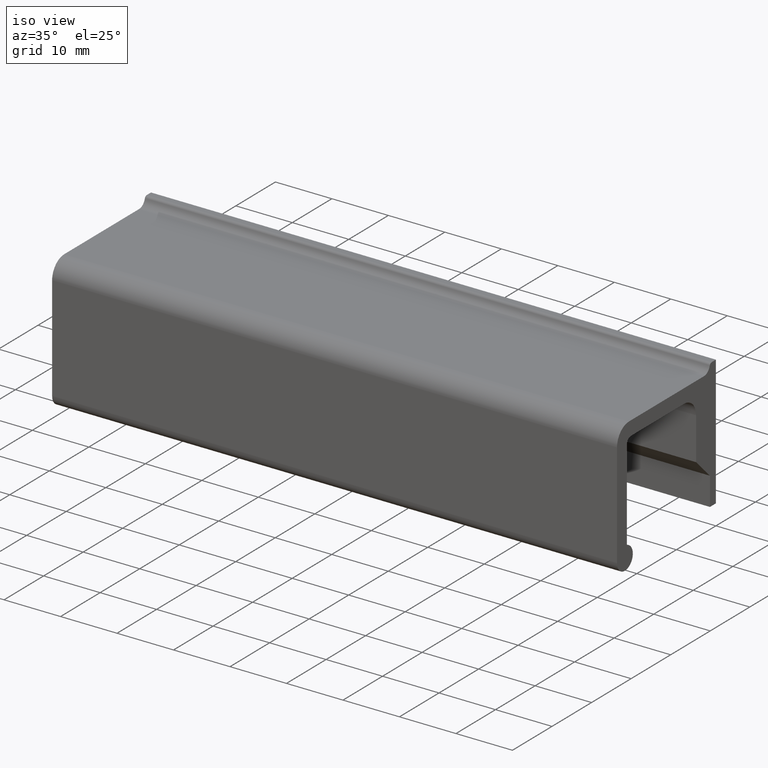
[diagram: clean part render]
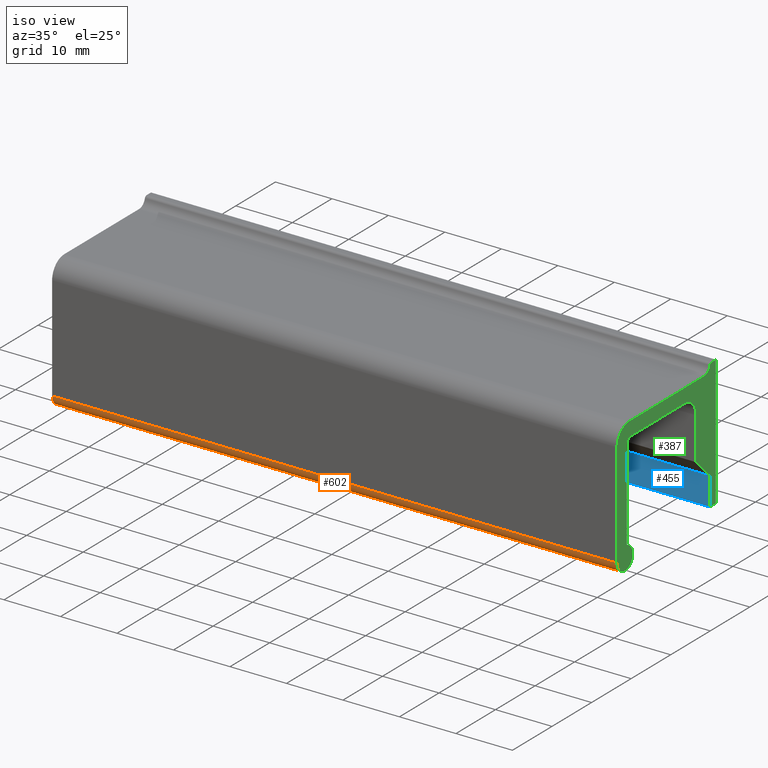
[diagram: same view with three faces highlighted in distinct colors, each labeled with its STEP entity id]
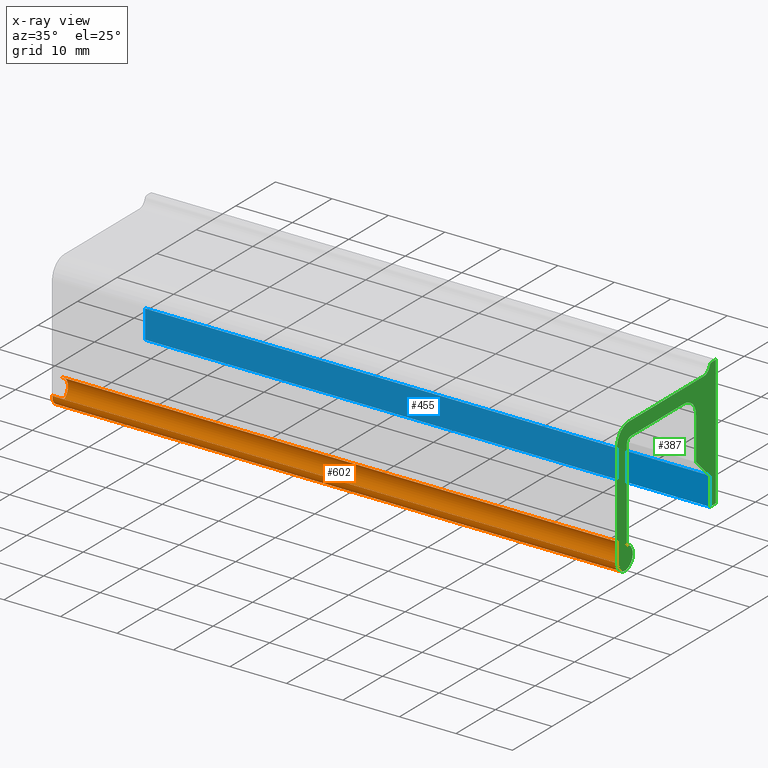
[diagram: x-ray of the same camera — body ghosted, the three highlighted faces saturated]
A machine part, iso view with three faces highlighted in distinct colors.
The next image is the same camera in x-ray (body ghosted, the three faces saturated) — at least one of them is partly hidden behind the body in this view.
Their STEP definitions:

[orange] entity #602 — the highlighted face is a freeform B-spline surface patch.
#145=CARTESIAN_POINT('',(0.0,-22.500000000000000,-21.063508326896400));
#146=VERTEX_POINT('',#145);
#152=CARTESIAN_POINT('',(0.0,-25.0,-23.0));
#153=VERTEX_POINT('',#152);
#154=CARTESIAN_POINT('',(0.0,-25.0,-23.0));
#155=CARTESIAN_POINT('',(0.0,-24.999999999999993,-24.838262194303105));
#156=CARTESIAN_POINT('',(0.0,-23.168254401781031,-24.992910047212700));
#157=CARTESIAN_POINT('',(0.0,-21.336508803562065,-25.147557900122276));
#158=CARTESIAN_POINT('',(0.0,-21.028309543718699,-23.335315887797190));
#159=CARTESIAN_POINT('',(0.0,-20.720110283875314,-21.523073875472090));
#160=CARTESIAN_POINT('',(0.0,-22.500000000000000,-21.063508326896400));
#168=(BOUNDED_CURVE()B_SPLINE_CURVE(2,(#154,#155,#156,#157,#158,#159,#160),.UNSPECIFIED.,.F.,.U.)B_SPLINE_CURVE_WITH_KNOTS((3,2,2,3),(0.0,0.333333333333333,0.666666666666667,1.0),.UNSPECIFIED.)CURVE()GEOMETRIC_REPRESENTATION_ITEM()RATIONAL_B_SPLINE_CURVE((1.0,0.736249686210635,1.0,0.736249686210635,1.0,0.736249686210635,1.0))REPRESENTATION_ITEM(''));
#169=EDGE_CURVE('',#153,#146,#168,.T.);
#275=CARTESIAN_POINT('',(100.0,-25.0,-23.0));
#276=VERTEX_POINT('',#275);
#282=CARTESIAN_POINT('',(100.0,-22.500000000000000,-21.063508326896400));
#283=VERTEX_POINT('',#282);
#284=CARTESIAN_POINT('',(100.0,-25.0,-23.0));
#285=CARTESIAN_POINT('',(99.999999999999986,-24.999999999999993,-24.838262194303105));
#286=CARTESIAN_POINT('',(100.0,-23.168254401781031,-24.992910047212700));
#287=CARTESIAN_POINT('',(99.999999999999986,-21.336508803562065,-25.147557900122276));
#288=CARTESIAN_POINT('',(100.0,-21.028309543718699,-23.335315887797190));
#289=CARTESIAN_POINT('',(99.999999999999986,-20.720110283875314,-21.523073875472090));
#290=CARTESIAN_POINT('',(100.0,-22.499999999999972,-21.063508326896301));
#298=(BOUNDED_CURVE()B_SPLINE_CURVE(2,(#284,#285,#286,#287,#288,#289,#290),.UNSPECIFIED.,.F.,.U.)B_SPLINE_CURVE_WITH_KNOTS((3,2,2,3),(0.0,0.333333333333333,0.666666666666667,1.0),.UNSPECIFIED.)CURVE()GEOMETRIC_REPRESENTATION_ITEM()RATIONAL_B_SPLINE_CURVE((1.0,0.736249686210635,1.0,0.736249686210635,1.0,0.736249686210635,1.0))REPRESENTATION_ITEM(''));
#299=EDGE_CURVE('',#276,#283,#298,.T.);
#562=CARTESIAN_POINT('',(100.0,-22.500000000000000,-21.063508326896400));
#563=CARTESIAN_POINT('',(0.0,-22.500000000000000,-21.063508326896400));
#564=QUASI_UNIFORM_CURVE('',1,(#562,#563),.UNSPECIFIED.,.F.,.U.);
#565=EDGE_CURVE('',#283,#146,#564,.T.);
#570=CARTESIAN_POINT('',(102.500000000000000,-24.999314649951110,-22.947646103384251));
#571=CARTESIAN_POINT('',(-2.562500000000000,-24.999314649951110,-22.947646103384251));
#572=CARTESIAN_POINT('',(102.500000000000010,-25.048708003942743,-24.833902191837279));
#573=CARTESIAN_POINT('',(-2.562500000000000,-25.048708003942743,-24.833902191837279));
#574=CARTESIAN_POINT('',(102.500000000000000,-23.168515130368409,-24.992888017635948));
#575=CARTESIAN_POINT('',(-2.562500000000000,-23.168515130368409,-24.992888017635948));
#576=CARTESIAN_POINT('',(102.500000000000010,-21.288322256794057,-25.151873843434625));
#577=CARTESIAN_POINT('',(-2.562500000000000,-21.288322256794057,-25.151873843434625));
#578=CARTESIAN_POINT('',(102.500000000000000,-21.020281916897069,-23.284106162262109));
#579=CARTESIAN_POINT('',(-2.562500000000000,-21.020281916897069,-23.284106162262109));
#580=CARTESIAN_POINT('',(102.500000000000010,-20.752241577000085,-21.416338481089600));
#581=CARTESIAN_POINT('',(-2.562500000000000,-20.752241577000085,-21.416338481089600));
#582=CARTESIAN_POINT('',(102.500000000000000,-22.601264131165600,-21.040150590758341));
#583=CARTESIAN_POINT('',(-2.562500000000000,-22.601264131165600,-21.040150590758341));
#591=(BOUNDED_SURFACE()B_SPLINE_SURFACE(1,2,((#570,#572,#574,#576,#578,#580,#582),(#571,#573,#575,#577,#579,#581,#583)),.UNSPECIFIED.,.F.,.F.,.U.)B_SPLINE_SURFACE_WITH_KNOTS((2,2),(3,2,2,3),(0.0,105.062500000000000),(0.0,3.178196639581942,6.356393279163884,9.534589918745827),.UNSPECIFIED.)GEOMETRIC_REPRESENTATION_ITEM()RATIONAL_B_SPLINE_SURFACE(((1.0,0.727373641573049,1.0,0.727373641573049,1.0,0.727373641573049,1.0),(1.0,0.727373641573049,1.0,0.727373641573049,1.0,0.727373641573049,1.0)))REPRESENTATION_ITEM('')SURFACE());
#592=ORIENTED_EDGE('',*,*,#169,.T.);
#593=ORIENTED_EDGE('',*,*,#565,.F.);
#594=ORIENTED_EDGE('',*,*,#299,.F.);
#595=CARTESIAN_POINT('',(100.0,-25.0,-23.0));
#596=CARTESIAN_POINT('',(0.0,-25.0,-23.0));
#597=QUASI_UNIFORM_CURVE('',1,(#595,#596),.UNSPECIFIED.,.F.,.U.);
#598=EDGE_CURVE('',#276,#153,#597,.T.);
#599=ORIENTED_EDGE('',*,*,#598,.T.);
#600=EDGE_LOOP('',(#592,#593,#594,#599));
#601=FACE_OUTER_BOUND('',#600,.T.);
#602=ADVANCED_FACE('',(#601),#591,.T.);

[blue] entity #455 — the highlighted face is a freeform B-spline surface patch.
#80=CARTESIAN_POINT('',(0.0,-1.500000000000000,-23.0));
#81=VERTEX_POINT('',#80);
#87=CARTESIAN_POINT('',(0.0,-1.500000000000000,-18.0));
#88=VERTEX_POINT('',#87);
#89=CARTESIAN_POINT('',(0.0,-1.500000000000000,-18.0));
#90=CARTESIAN_POINT('',(0.0,-1.500000000000000,-23.0));
#91=QUASI_UNIFORM_CURVE('',1,(#89,#90),.UNSPECIFIED.,.F.,.U.);
#92=EDGE_CURVE('',#88,#81,#91,.T.);
#352=CARTESIAN_POINT('',(100.0,-1.500000000000000,-18.0));
#353=VERTEX_POINT('',#352);
#359=CARTESIAN_POINT('',(100.0,-1.500000000000000,-23.0));
#360=VERTEX_POINT('',#359);
#361=CARTESIAN_POINT('',(100.0,-1.500000000000000,-18.0));
#362=CARTESIAN_POINT('',(100.0,-1.500000000000000,-23.0));
#363=QUASI_UNIFORM_CURVE('',1,(#361,#362),.UNSPECIFIED.,.F.,.U.);
#364=EDGE_CURVE('',#353,#360,#363,.T.);
#432=CARTESIAN_POINT('',(100.0,-1.500000000000000,-23.0));
#433=CARTESIAN_POINT('',(0.0,-1.500000000000000,-23.0));
#434=QUASI_UNIFORM_CURVE('',1,(#432,#433),.UNSPECIFIED.,.F.,.U.);
#435=EDGE_CURVE('',#360,#81,#434,.T.);
#440=CARTESIAN_POINT('',(-4.994999806180597,-1.500000000000000,-23.249749990309031));
#441=CARTESIAN_POINT('',(-4.994999806180597,-1.500000000000000,-17.750249875580518));
#442=CARTESIAN_POINT('',(104.995002488389600,-1.500000000000000,-23.249749990309031));
#443=CARTESIAN_POINT('',(104.995002488389600,-1.500000000000000,-17.750249875580518));
#444=B_SPLINE_SURFACE_WITH_KNOTS('',1,1,((#440,#442),(#441,#443)),.UNSPECIFIED.,.F.,.F.,.U.,(2,2),(2,2),(0.0,5.499500114728519),(0.0,109.990002294570200),.UNSPECIFIED.);
#445=ORIENTED_EDGE('',*,*,#92,.T.);
#446=ORIENTED_EDGE('',*,*,#435,.F.);
#447=ORIENTED_EDGE('',*,*,#364,.F.);
#448=CARTESIAN_POINT('',(100.0,-1.500000000000000,-18.0));
#449=CARTESIAN_POINT('',(0.0,-1.500000000000000,-18.0));
#450=QUASI_UNIFORM_CURVE('',1,(#448,#449),.UNSPECIFIED.,.F.,.U.);
#451=EDGE_CURVE('',#353,#88,#450,.T.);
#452=ORIENTED_EDGE('',*,*,#451,.T.);
#453=EDGE_LOOP('',(#445,#446,#447,#452));
#454=FACE_OUTER_BOUND('',#453,.T.);
#455=ADVANCED_FACE('',(#454),#444,.F.);

[green] entity #387 — the highlighted face is a freeform B-spline surface patch.
#216=CARTESIAN_POINT('',(100.0,-26.248749951545150,1.248542813103981));
#217=CARTESIAN_POINT('',(100.0,1.248750622097403,1.248542813103981));
#218=CARTESIAN_POINT('',(100.0,-26.248749951545150,-26.244396567910631));
#219=CARTESIAN_POINT('',(100.0,1.248750622097403,-26.244396567910631));
#220=B_SPLINE_SURFACE_WITH_KNOTS('',1,1,((#216,#218),(#217,#219)),.UNSPECIFIED.,.F.,.F.,.U.,(2,2),(2,2),(0.0,27.497500573642551),(0.0,27.492939381014612),.UNSPECIFIED.);
#221=CARTESIAN_POINT('',(100.0,-1.063500000000118,-6.511844E-017));
#222=VERTEX_POINT('',#221);
#223=CARTESIAN_POINT('',(100.0,-1.547630854851320,-0.374998488290413));
#224=VERTEX_POINT('',#223);
#225=CARTESIAN_POINT('',(100.0,-1.063500000000118,-6.511844E-017));
#226=CARTESIAN_POINT('',(100.0,-1.450802654198313,0.000001007806392));
#227=CARTESIAN_POINT('',(100.0,-1.547630854851320,-0.374998488290413));
#235=(BOUNDED_CURVE()B_SPLINE_CURVE(2,(#225,#226,#227),.UNSPECIFIED.,.F.,.U.)CURVE()GEOMETRIC_REPRESENTATION_ITEM()QUASI_UNIFORM_CURVE()RATIONAL_B_SPLINE_CURVE((1.0,0.790569096345667,1.0))REPRESENTATION_ITEM(''));
#236=EDGE_CURVE('',#222,#224,#235,.T.);
#237=ORIENTED_EDGE('',*,*,#236,.T.);
#238=CARTESIAN_POINT('',(100.0,-3.0,-1.500000000000000));
#239=VERTEX_POINT('',#238);
#240=CARTESIAN_POINT('',(100.0,-3.0,-1.500000000000000));
#241=CARTESIAN_POINT('',(99.999999999999986,-1.838103747107881,-1.500000000000000));
#242=CARTESIAN_POINT('',(100.0,-1.547630854851321,-0.374998488290413));
#250=(BOUNDED_CURVE()B_SPLINE_CURVE(2,(#240,#241,#242),.UNSPECIFIED.,.F.,.U.)CURVE()GEOMETRIC_REPRESENTATION_ITEM()QUASI_UNIFORM_CURVE()RATIONAL_B_SPLINE_CURVE((1.0,0.790569096345667,1.0))REPRESENTATION_ITEM(''));
#251=EDGE_CURVE('',#239,#224,#250,.T.);
#252=ORIENTED_EDGE('',*,*,#251,.F.);
#253=CARTESIAN_POINT('',(100.0,-22.0,-1.500000000000000));
#254=VERTEX_POINT('',#253);
#255=CARTESIAN_POINT('',(100.0,-3.0,-1.500000000000000));
#256=CARTESIAN_POINT('',(100.0,-22.0,-1.500000000000000));
#257=QUASI_UNIFORM_CURVE('',1,(#255,#256),.UNSPECIFIED.,.F.,.U.);
#258=EDGE_CURVE('',#239,#254,#257,.T.);
#259=ORIENTED_EDGE('',*,*,#258,.T.);
#260=CARTESIAN_POINT('',(100.0,-25.0,-4.500000000000200));
#261=VERTEX_POINT('',#260);
#262=CARTESIAN_POINT('',(100.0,-22.0,-1.500000000000200));
#263=CARTESIAN_POINT('',(100.0,-25.0,-1.500000000000201));
#264=CARTESIAN_POINT('',(100.0,-25.0,-4.500000000000200));
#272=(BOUNDED_CURVE()B_SPLINE_CURVE(2,(#262,#263,#264),.UNSPECIFIED.,.F.,.U.)CURVE()GEOMETRIC_REPRESENTATION_ITEM()QUASI_UNIFORM_CURVE()RATIONAL_B_SPLINE_CURVE((1.0,0.707106781186548,1.0))REPRESENTATION_ITEM(''));
#273=EDGE_CURVE('',#254,#261,#272,.T.);
#274=ORIENTED_EDGE('',*,*,#273,.T.);
#275=CARTESIAN_POINT('',(100.0,-25.0,-23.0));
#276=VERTEX_POINT('',#275);
#277=CARTESIAN_POINT('',(100.0,-25.0,-4.500000000000200));
#278=CARTESIAN_POINT('',(100.0,-25.0,-23.0));
#279=QUASI_UNIFORM_CURVE('',1,(#277,#278),.UNSPECIFIED.,.F.,.U.);
#280=EDGE_CURVE('',#261,#276,#279,.T.);
#281=ORIENTED_EDGE('',*,*,#280,.T.);
#282=CARTESIAN_POINT('',(100.0,-22.500000000000000,-21.063508326896400));
#283=VERTEX_POINT('',#282);
#284=CARTESIAN_POINT('',(100.0,-25.0,-23.0));
#285=CARTESIAN_POINT('',(99.999999999999986,-24.999999999999993,-24.838262194303105));
#286=CARTESIAN_POINT('',(100.0,-23.168254401781031,-24.992910047212700));
#287=CARTESIAN_POINT('',(99.999999999999986,-21.336508803562065,-25.147557900122276));
#288=CARTESIAN_POINT('',(100.0,-21.028309543718699,-23.335315887797190));
#289=CARTESIAN_POINT('',(99.999999999999986,-20.720110283875314,-21.523073875472090));
#290=CARTESIAN_POINT('',(100.0,-22.499999999999972,-21.063508326896301));
#298=(BOUNDED_CURVE()B_SPLINE_CURVE(2,(#284,#285,#286,#287,#288,#289,#290),.UNSPECIFIED.,.F.,.U.)B_SPLINE_CURVE_WITH_KNOTS((3,2,2,3),(0.0,0.333333333333333,0.666666666666667,1.0),.UNSPECIFIED.)CURVE()GEOMETRIC_REPRESENTATION_ITEM()RATIONAL_B_SPLINE_CURVE((1.0,0.736249686210635,1.0,0.736249686210635,1.0,0.736249686210635,1.0))REPRESENTATION_ITEM(''));
#299=EDGE_CURVE('',#276,#283,#298,.T.);
#300=ORIENTED_EDGE('',*,*,#299,.T.);
#301=CARTESIAN_POINT('',(100.0,-22.500000000000000,-5.0));
#302=VERTEX_POINT('',#301);
#303=CARTESIAN_POINT('',(100.0,-22.500000000000000,-21.063508326896400));
#304=CARTESIAN_POINT('',(100.0,-22.500000000000000,-5.0));
#305=QUASI_UNIFORM_CURVE('',1,(#303,#304),.UNSPECIFIED.,.F.,.U.);
#306=EDGE_CURVE('',#283,#302,#305,.T.);
#307=ORIENTED_EDGE('',*,*,#306,.T.);
#308=CARTESIAN_POINT('',(100.0,-21.500000000000000,-4.0));
#309=VERTEX_POINT('',#308);
#310=CARTESIAN_POINT('',(100.0,-21.500000000000000,-4.0));
#311=CARTESIAN_POINT('',(100.0,-22.500000000000000,-4.000000000000000));
#312=CARTESIAN_POINT('',(100.0,-22.500000000000000,-5.0));
#320=(BOUNDED_CURVE()B_SPLINE_CURVE(2,(#310,#311,#312),.UNSPECIFIED.,.F.,.U.)CURVE()GEOMETRIC_REPRESENTATION_ITEM()QUASI_UNIFORM_CURVE()RATIONAL_B_SPLINE_CURVE((1.0,0.707106781186548,1.0))REPRESENTATION_ITEM(''));
#321=EDGE_CURVE('',#309,#302,#320,.T.);
#322=ORIENTED_EDGE('',*,*,#321,.F.);
#323=CARTESIAN_POINT('',(100.0,-8.0,-4.0));
#324=VERTEX_POINT('',#323);
#325=CARTESIAN_POINT('',(100.0,-21.500000000000000,-4.0));
#326=CARTESIAN_POINT('',(100.0,-8.0,-4.0));
#327=QUASI_UNIFORM_CURVE('',1,(#325,#326),.UNSPECIFIED.,.F.,.U.);
#328=EDGE_CURVE('',#309,#324,#327,.T.);
#329=ORIENTED_EDGE('',*,*,#328,.T.);
#330=CARTESIAN_POINT('',(100.0,-5.0,-7.0));
#331=VERTEX_POINT('',#330);
#332=CARTESIAN_POINT('',(100.0,-5.0,-7.0));
#333=CARTESIAN_POINT('',(100.0,-5.000000000000001,-4.000000000000000));
#334=CARTESIAN_POINT('',(100.0,-8.0,-4.0));
#342=(BOUNDED_CURVE()B_SPLINE_CURVE(2,(#332,#333,#334),.UNSPECIFIED.,.F.,.U.)CURVE()GEOMETRIC_REPRESENTATION_ITEM()QUASI_UNIFORM_CURVE()RATIONAL_B_SPLINE_CURVE((1.0,0.707106781186548,1.0))REPRESENTATION_ITEM(''));
#343=EDGE_CURVE('',#331,#324,#342,.T.);
#344=ORIENTED_EDGE('',*,*,#343,.F.);
#345=CARTESIAN_POINT('',(100.0,-5.0,-14.500000000000000));
#346=VERTEX_POINT('',#345);
#347=CARTESIAN_POINT('',(100.0,-5.0,-7.0));
#348=CARTESIAN_POINT('',(100.0,-5.0,-14.500000000000000));
#349=QUASI_UNIFORM_CURVE('',1,(#347,#348),.UNSPECIFIED.,.F.,.U.);
#350=EDGE_CURVE('',#331,#346,#349,.T.);
#351=ORIENTED_EDGE('',*,*,#350,.T.);
#352=CARTESIAN_POINT('',(100.0,-1.500000000000000,-18.0));
#353=VERTEX_POINT('',#352);
#354=CARTESIAN_POINT('',(100.0,-5.0,-14.500000000000000));
#355=CARTESIAN_POINT('',(100.0,-1.500000000000000,-18.0));
#356=QUASI_UNIFORM_CURVE('',1,(#354,#355),.UNSPECIFIED.,.F.,.U.);
#357=EDGE_CURVE('',#346,#353,#356,.T.);
#358=ORIENTED_EDGE('',*,*,#357,.T.);
#359=CARTESIAN_POINT('',(100.0,-1.500000000000000,-23.0));
#360=VERTEX_POINT('',#359);
#361=CARTESIAN_POINT('',(100.0,-1.500000000000000,-18.0));
#362=CARTESIAN_POINT('',(100.0,-1.500000000000000,-23.0));
#363=QUASI_UNIFORM_CURVE('',1,(#361,#362),.UNSPECIFIED.,.F.,.U.);
#364=EDGE_CURVE('',#353,#360,#363,.T.);
#365=ORIENTED_EDGE('',*,*,#364,.T.);
#366=CARTESIAN_POINT('',(100.0,0.0,-23.0));
#367=VERTEX_POINT('',#366);
#368=CARTESIAN_POINT('',(100.0,-1.500000000000000,-23.0));
#369=CARTESIAN_POINT('',(100.0,0.0,-23.0));
#370=QUASI_UNIFORM_CURVE('',1,(#368,#369),.UNSPECIFIED.,.F.,.U.);
#371=EDGE_CURVE('',#360,#367,#370,.T.);
#372=ORIENTED_EDGE('',*,*,#371,.T.);
#373=CARTESIAN_POINT('',(100.0,0.0,0.0));
#374=VERTEX_POINT('',#373);
#375=CARTESIAN_POINT('',(100.0,0.0,-23.0));
#376=CARTESIAN_POINT('',(100.0,0.0,0.0));
#377=QUASI_UNIFORM_CURVE('',1,(#375,#376),.UNSPECIFIED.,.F.,.U.);
#378=EDGE_CURVE('',#367,#374,#377,.T.);
#379=ORIENTED_EDGE('',*,*,#378,.T.);
#380=CARTESIAN_POINT('',(100.0,0.0,0.0));
#381=CARTESIAN_POINT('',(100.0,-1.063500000000118,-6.511844E-017));
#382=QUASI_UNIFORM_CURVE('',1,(#380,#381),.UNSPECIFIED.,.F.,.U.);
#383=EDGE_CURVE('',#374,#222,#382,.T.);
#384=ORIENTED_EDGE('',*,*,#383,.T.);
#385=EDGE_LOOP('',(#237,#252,#259,#274,#281,#300,#307,#322,#329,#344,#351,#358,#365,#372,#379,#384));
#386=FACE_OUTER_BOUND('',#385,.T.);
#387=ADVANCED_FACE('',(#386),#220,.F.);